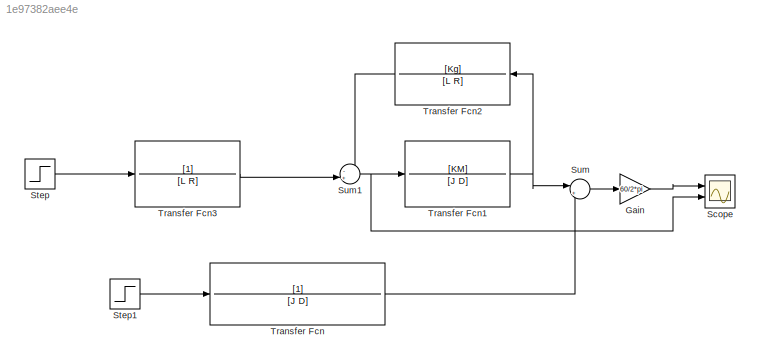
MODEL slx_1e97382aee4e
KIND model
CONFIG AbsTol = auto
CONFIG EnableMultiTasking = off
CONFIG FixedStep = auto
CONFIG MaxStep = auto
CONFIG MinStep = auto
CONFIG RelTol = 1e-3
CONFIG SampleTimeConstraint = Unconstrained
CONFIG SolverName = VariableStepAuto
CONFIG StartTime = 0.0
CONFIG StopTime = 100.0
BLOCK [Gain] Gain
  Gain = 60/2*pi
BLOCK [Scope] Scope
  Floating = off
  NumInputPorts = 2
  Ports = [2]
  ScopeSpecificationString = Simulink.scopes.TimeScopeBlockCfg('CurrentConfiguration', extmgr.ConfigurationSet(extmgr.Configuration('Core','General UI',true),extmgr.Configuration('Core','Source UI',true),extmgr.Configuration('Sources','WiredSimulink',true),extmgr.Configuration('Visuals','Time Domain',true,'SerializedDisplays',{struct('MinYLimReal','-4835.37264','MaxYLimReal','992.42954','YLabelReal','','MinYLimMag','  0.00000...<+1351ch>
BLOCK [Step] Step
  Before = 10
  SampleTime = 0
  Time = 0
BLOCK [Step] Step1
  After = TL
  SampleTime = 0
  Time = 50
BLOCK [Sum] Sum
  Inputs = |+-
  Ports = [2, 1]
BLOCK [Sum] Sum1
  Inputs = -+|
  Ports = [2, 1]
BLOCK [TransferFcn] Transfer Fcn
  Denominator = [J D]
BLOCK [TransferFcn] Transfer Fcn1
  Denominator = [J D]
  Numerator = [KM]
BLOCK [TransferFcn] Transfer Fcn2
  Denominator = [L R]
  Numerator = [Kg]
BLOCK [TransferFcn] Transfer Fcn3
  Denominator = [L R]
LINE Gain:1 -> Scope:1
LINE Step1:1 -> Transfer Fcn:1
LINE Step:1 -> Transfer Fcn3:1
NET Sum1:1 -> Scope:2, Transfer Fcn1:1
LINE Sum:1 -> Gain:1
NET Transfer Fcn1:1 -> Sum:1, Transfer Fcn2:1
LINE Transfer Fcn2:1 -> Sum1:1
LINE Transfer Fcn3:1 -> Sum1:2
LINE Transfer Fcn:1 -> Sum:2
note: NET lines group one-source signal fan-out (src -> all destinations, sorted); 1:1 wires keep LINE
